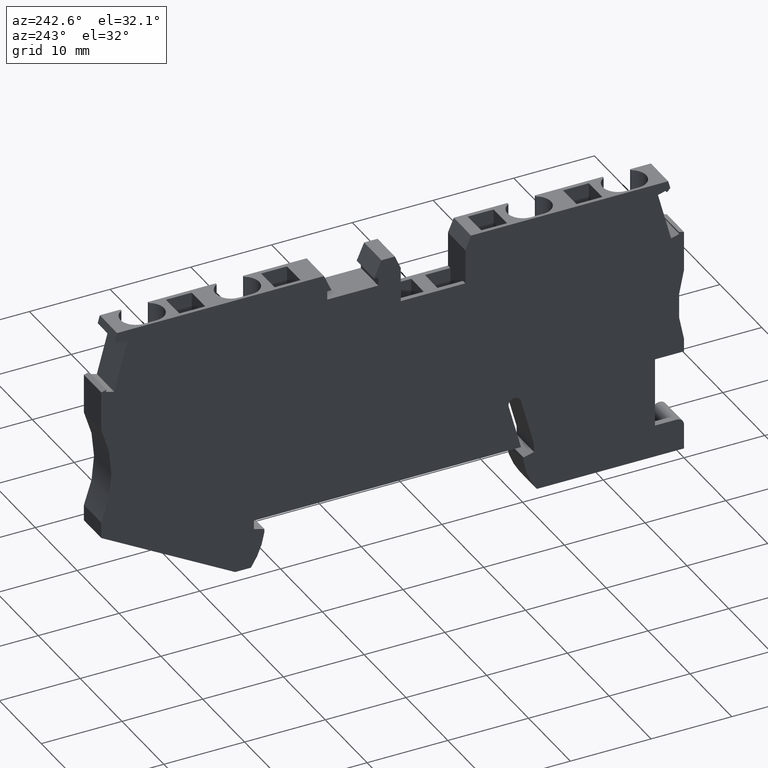
[diagram: clean part render]
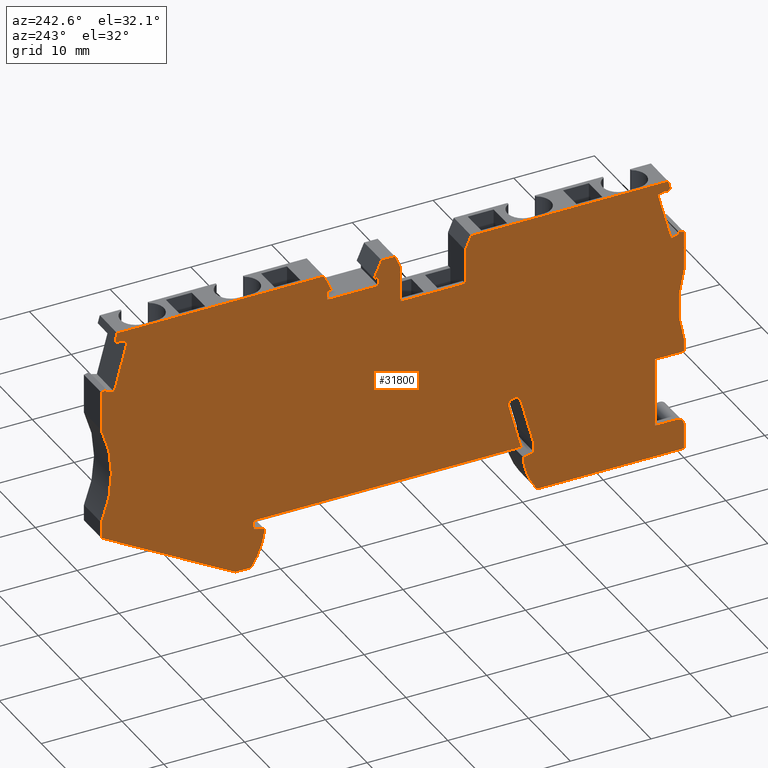
[diagram: same view with one face highlighted and labeled with its STEP entity id]
A machine part, auxiliary view. The second image highlights one B-rep face of the part: STEP entity #31800.
In plain terms, the highlighted planar face has unit normal (-1, -0, 0).
Its self-contained STEP definition (entity closure, byte-faithful):
#7020=CARTESIAN_POINT('',(0.0996055945219609,1.06581410364015E-14,-4.15)
);
#7030=DIRECTION('',(0.121869343404765,-0.992546151641369,
5.50815964095196E-32));
#7040=VECTOR('',#7030,1.);
#7050=LINE('',#7020,#7040);
#7060=CARTESIAN_POINT('',(0.472001856340519,-3.03292416474266,-4.15));
#7070=VERTEX_POINT('',#7060);
#7080=CARTESIAN_POINT('',(0.849796820895286,-6.10981723483097,-4.15));
#7090=VERTEX_POINT('',#7080);
#7100=EDGE_CURVE('',#7070,#7090,#7050,.T.);
#9030=CARTESIAN_POINT('',(-1.63922510601571,28.129341348902,-4.15));
#9040=VERTEX_POINT('',#9030);
#9070=CARTESIAN_POINT('',(-5.59254621883092,1.24344978758018E-14,-4.15))
;
#9080=DIRECTION('',(-0.139173100960481,-0.990268068741512,0.));
#9090=VECTOR('',#9080,1.);
#9100=LINE('',#9070,#9090);
#9110=CARTESIAN_POINT('',(-1.50051398889333,29.1163222318297,-4.15));
#9120=VERTEX_POINT('',#9110);
#9130=EDGE_CURVE('',#9120,#9040,#9100,.T.);
#9410=CARTESIAN_POINT('',(-1.15696939205302,27.7525618912832,-4.15));
#9420=VERTEX_POINT('',#9410);
#9450=CARTESIAN_POINT('',(-1.75415237890775E-14,26.8486383349665,-4.15))
;
#9460=DIRECTION('',(0.788010753607553,-0.615661475324594,0.));
#9470=VECTOR('',#9460,1.);
#9480=LINE('',#9450,#9470);
#9490=EDGE_CURVE('',#9040,#9420,#9480,.T.);
#9710=CARTESIAN_POINT('',(56.0528727208694,0.668268200037353,-4.15));
#9720=VERTEX_POINT('',#9710);
#9750=CARTESIAN_POINT('',(0.,-6.214159164341,-4.15));
#9760=DIRECTION('',(-0.992546151641322,-0.121869343405147,0.));
#9770=VECTOR('',#9760,1.);
#9780=LINE('',#9750,#9770);
#9790=CARTESIAN_POINT('',(54.108775151386,0.429563033615931,-4.15));
#9800=VERTEX_POINT('',#9790);
#9810=EDGE_CURVE('',#9720,#9800,#9780,.T.);
#10040=CARTESIAN_POINT('',(18.9548874062865,-3.88679163719611,-4.15));
#10050=VERTEX_POINT('',#10040);
#10080=CARTESIAN_POINT('',(-1.75415237890775E-14,-6.2141591643413,-4.15)
);
#10090=DIRECTION('',(0.99254615164132,0.121869343405163,0.));
#10100=VECTOR('',#10090,1.);
#10110=LINE('',#10080,#10100);
#10120=EDGE_CURVE('',#7090,#10050,#10110,.T.);
#10500=CARTESIAN_POINT('',(3.93548559318386,-1.70090299200709,-4.15));
#10510=VERTEX_POINT('',#10500);
#10540=CARTESIAN_POINT('',(3.72664096617183,1.24344978758018E-14,-4.15))
;
#10550=DIRECTION('',(0.121869343405147,-0.992546151641322,0.));
#10560=VECTOR('',#10550,1.);
#10570=LINE('',#10540,#10560);
#10580=CARTESIAN_POINT('',(2.88740923989949,6.83499391210909,-4.15));
#10590=VERTEX_POINT('',#10580);
#10600=EDGE_CURVE('',#10590,#10510,#10570,.T.);
#12090=CARTESIAN_POINT('',(1.36529339281751,-2.92324175567805,-4.15));
#12100=DIRECTION('',(1.37494182847794E-31,-3.30939351722564E-31,1.));
#12110=DIRECTION('',(0.992546151641322,0.121869343405147,
1.83748564671773E-44));
#12120=AXIS2_PLACEMENT_3D('',#12090,#12100,#12110);
#12130=CIRCLE('',#12120,0.89999999999984);
#12140=CARTESIAN_POINT('',(1.25561098375288,-2.02995021920092,-4.15));
#12150=VERTEX_POINT('',#12140);
#12160=EDGE_CURVE('',#12150,#7070,#12130,.T.);
#13820=CARTESIAN_POINT('',(20.1018012370322,0.384821958285862,-4.15));
#13830=VERTEX_POINT('',#13820);
#13860=CARTESIAN_POINT('',(10.6053593749794,0.644806497501682,-4.15));
#13870=DIRECTION('',(0.,0.,1.));
#13880=DIRECTION('',(0.992546151641322,0.121869343405147,0.));
#13890=AXIS2_PLACEMENT_3D('',#13860,#13870,#13880);
#13900=CIRCLE('',#13890,9.49999999999899);
#13910=EDGE_CURVE('',#10050,#13830,#13900,.T.);
#14140=CARTESIAN_POINT('',(20.0467569920995,0.833121357882088,-4.15));
#14150=VERTEX_POINT('',#14140);
#14180=CARTESIAN_POINT('',(20.1490514322064,1.24344978758018E-14,-4.15))
;
#14190=DIRECTION('',(-0.121869343405772,0.992546151641245,0.));
#14200=VECTOR('',#14190,1.);
#14210=LINE('',#14180,#14200);
#14220=EDGE_CURVE('',#13830,#14150,#14210,.T.);
#14450=CARTESIAN_POINT('',(18.7139957651747,1.02042873317322,-4.15));
#14460=VERTEX_POINT('',#14450);
#14490=CARTESIAN_POINT('',(-1.75415237890775E-14,3.65050931862992,-4.15)
);
#14500=DIRECTION('',(-0.990268068741556,0.13917310096017,0.));
#14510=VECTOR('',#14500,1.);
#14520=LINE('',#14490,#14510);
#14530=EDGE_CURVE('',#14150,#14460,#14520,.T.);
#14760=CARTESIAN_POINT('',(18.5799394874283,2.11222949998419,-4.15));
#14770=VERTEX_POINT('',#14760);
#14800=CARTESIAN_POINT('',(18.83928865911,1.24344978758018E-14,-4.15));
#14810=DIRECTION('',(-0.121869343405147,0.992546151641322,0.));
#14820=VECTOR('',#14810,1.);
#14830=LINE('',#14800,#14820);
#14840=EDGE_CURVE('',#14460,#14770,#14830,.T.);
#15070=CARTESIAN_POINT('',(19.4454516024282,8.27066819740211,-4.15));
#15080=VERTEX_POINT('',#15070);
#15110=CARTESIAN_POINT('',(18.2830849904171,1.24344978758018E-14,-4.15))
;
#15120=DIRECTION('',(0.139173100960267,0.990268068741542,0.));
#15130=VECTOR('',#15120,1.);
#15140=LINE('',#15110,#15130);
#15150=EDGE_CURVE('',#14770,#15080,#15140,.T.);
#15380=CARTESIAN_POINT('',(20.1680133300546,2.30722044942675,-4.15));
#15390=VERTEX_POINT('',#15380);
#15420=CARTESIAN_POINT('',(19.8437546422496,1.24344978758018E-14,-4.15))
;
#15430=DIRECTION('',(-0.139173100960126,-0.990268068741562,0.));
#15440=VECTOR('',#15430,1.);
#15450=LINE('',#15420,#15440);
#15460=CARTESIAN_POINT('',(20.9898097165992,8.15460557620849,-4.15));
#15470=VERTEX_POINT('',#15460);
#15480=EDGE_CURVE('',#15470,#15390,#15450,.T.);
#15730=CARTESIAN_POINT('',(20.2966220684799,8.25202674688054,-4.15));
#15740=DIRECTION('',(0.,0.,1.));
#15750=DIRECTION('',(0.992546151641322,0.121869343405147,0.));
#15760=AXIS2_PLACEMENT_3D('',#15730,#15740,#15750);
#15770=CIRCLE('',#15760,0.700000000000238);
#15780=CARTESIAN_POINT('',(20.3722274973531,8.947931782877,-4.15));
#15790=VERTEX_POINT('',#15780);
#15800=EDGE_CURVE('',#15470,#15790,#15770,.T.);
#16050=CARTESIAN_POINT('',(20.2376660574214,8.15932971663349,-4.15));
#16060=DIRECTION('',(0.,0.,1.));
#16070=DIRECTION('',(0.992546151641322,0.121869343405147,0.));
#16080=AXIS2_PLACEMENT_3D('',#16050,#16060,#16070);
#16090=CIRCLE('',#16080,0.80000000000001);
#16100=EDGE_CURVE('',#15790,#15080,#16090,.T.);
#16330=CARTESIAN_POINT('',(53.0212909493827,6.34109571613717,-4.15));
#16340=VERTEX_POINT('',#16330);
#16370=CARTESIAN_POINT('',(-1.75415237890775E-14,-0.169100211587936,
-4.15));
#16380=DIRECTION('',(0.992546151641322,0.121869343405147,0.));
#16390=VECTOR('',#16380,1.);
#16400=LINE('',#16370,#16390);
#16410=EDGE_CURVE('',#15390,#16340,#16400,.T.);
#16640=CARTESIAN_POINT('',(53.1553472271283,5.24929494933181,-4.15));
#16650=VERTEX_POINT('',#16640);
#16680=CARTESIAN_POINT('',(53.7998796025319,1.24344978758018E-14,-4.15))
;
#16690=DIRECTION('',(0.121869343405147,-0.992546151641322,0.));
#16700=VECTOR('',#16690,1.);
#16710=LINE('',#16680,#16700);
#16720=EDGE_CURVE('',#16340,#16650,#16710,.T.);
#16950=CARTESIAN_POINT('',(51.9074884597862,4.74512728118737,-4.15));
#16960=VERTEX_POINT('',#16950);
#16990=CARTESIAN_POINT('',(-1.75415237890775E-14,-16.226859373798,-4.15)
);
#17000=DIRECTION('',(-0.927183854566812,-0.374606593415851,0.));
#17010=VECTOR('',#17000,1.);
#17020=LINE('',#16990,#17010);
#17030=EDGE_CURVE('',#16650,#16960,#17020,.T.);
#17260=CARTESIAN_POINT('',(51.9625327047183,4.29682788159137,-4.15));
#17270=VERTEX_POINT('',#17260);
#17300=CARTESIAN_POINT('',(52.4901168294318,1.24344978758018E-14,-4.15))
;
#17310=DIRECTION('',(0.121869343404462,-0.992546151641406,0.));
#17320=VECTOR('',#17310,1.);
#17330=LINE('',#17300,#17320);
#17340=EDGE_CURVE('',#16960,#17270,#17330,.T.);
#17540=CARTESIAN_POINT('',(61.113993705743,6.84648698560988,-4.15));
#17550=DIRECTION('',(0.,0.,-1.));
#17560=DIRECTION('',(-0.992546151641322,-0.121869343405147,0.));
#17570=AXIS2_PLACEMENT_3D('',#17540,#17550,#17560);
#17580=CIRCLE('',#17570,9.499999999999);
#17590=EDGE_CURVE('',#9800,#17270,#17580,.T.);
#17820=CARTESIAN_POINT('',(71.390431316507,11.8205739917481,-4.15));
#17830=VERTEX_POINT('',#17820);
#17860=CARTESIAN_POINT('',(-1.75415237890775E-14,-40.0891165681469,-4.15
));
#17870=DIRECTION('',(0.808793328533598,0.588092978804834,0.));
#17880=VECTOR('',#17870,1.);
#17890=LINE('',#17860,#17880);
#17900=EDGE_CURVE('',#9720,#17830,#17890,.T.);
#18130=CARTESIAN_POINT('',(71.1466926296971,13.8056662950281,-4.15));
#18140=VERTEX_POINT('',#18130);
#18170=CARTESIAN_POINT('',(72.8418153037041,1.24344978758018E-14,-4.15))
;
#18180=DIRECTION('',(-0.121869343405147,0.992546151641322,0.));
#18190=VECTOR('',#18180,1.);
#18200=LINE('',#18170,#18190);
#18210=EDGE_CURVE('',#17830,#18140,#18200,.T.);
#18440=CARTESIAN_POINT('',(69.6842605088353,25.7162201147239,-4.15));
#18450=VERTEX_POINT('',#18440);
#18480=CARTESIAN_POINT('',(84.0607301811666,21.4363696780219,-4.15));
#18490=DIRECTION('',(0.,0.,1.));
#18500=DIRECTION('',(0.992546151641322,0.121869343405147,0.));
#18510=AXIS2_PLACEMENT_3D('',#18480,#18490,#18500);
#18520=CIRCLE('',#18510,15.);
#18530=EDGE_CURVE('',#18450,#18140,#18520,.T.);
#18760=CARTESIAN_POINT('',(69.0871103937917,30.5796175211438,-4.15));
#18770=VERTEX_POINT('',#18760);
#18800=CARTESIAN_POINT('',(72.8418153037041,1.24344978758018E-14,-4.15))
;
#18810=DIRECTION('',(-0.121869343405147,0.992546151641322,0.));
#18820=VECTOR('',#18810,1.);
#18830=LINE('',#18800,#18820);
#18840=EDGE_CURVE('',#18450,#18770,#18830,.T.);
#19070=CARTESIAN_POINT('',(68.4321055573521,30.6716724475863,-4.15));
#19080=VERTEX_POINT('',#19070);
#19110=CARTESIAN_POINT('',(-1.75415237890775E-14,40.2891776825544,-4.15)
);
#19120=DIRECTION('',(-0.990268068742576,0.139173100952908,0.));
#19130=VECTOR('',#19120,1.);
#19140=LINE('',#19110,#19130);
#19150=EDGE_CURVE('',#18770,#19080,#19140,.T.);
#19380=CARTESIAN_POINT('',(68.5341137876654,30.4191932177982,-4.15));
#19390=VERTEX_POINT('',#19380);
#19420=CARTESIAN_POINT('',(80.8242656164388,1.24344978758018E-14,-4.15))
;
#19430=DIRECTION('',(0.374606593416855,-0.927183854566407,0.));
#19440=VECTOR('',#19430,1.);
#19450=LINE('',#19420,#19440);
#19460=EDGE_CURVE('',#19080,#19390,#19450,.T.);
#19690=CARTESIAN_POINT('',(66.2701516819991,37.4375136583179,-4.15));
#19700=VERTEX_POINT('',#19690);
#19730=CARTESIAN_POINT('',(81.3958890300397,1.24344978758018E-14,-4.15))
;
#19740=DIRECTION('',(-0.374606593416301,0.92718385456663,0.));
#19750=VECTOR('',#19740,1.);
#19760=LINE('',#19730,#19750);
#19770=CARTESIAN_POINT('',(66.6435147722446,36.5134075821014,-4.15));
#19780=VERTEX_POINT('',#19770);
#19790=EDGE_CURVE('',#19780,#19700,#19760,.T.);
#20040=CARTESIAN_POINT('',(38.116114253488,1.24344978758018E-14,-4.15));
#20050=DIRECTION('',(0.615661475326723,0.78801075360589,0.));
#20060=VECTOR('',#20050,1.);
#20070=LINE('',#20040,#20060);
#20080=CARTESIAN_POINT('',(66.2667353146246,36.0311518681398,-4.15));
#20090=VERTEX_POINT('',#20080);
#20100=EDGE_CURVE('',#20090,#19780,#20070,.T.);
#20350=CARTESIAN_POINT('',(80.8242656163767,1.24344978758018E-14,-4.15))
;
#20360=DIRECTION('',(0.374606593415343,-0.927183854567017,0.));
#20370=VECTOR('',#20360,1.);
#20380=LINE('',#20350,#20370);
#20390=CARTESIAN_POINT('',(66.1647270843101,36.2836310979318,-4.15));
#20400=VERTEX_POINT('',#20390);
#20410=EDGE_CURVE('',#20400,#20090,#20380,.T.);
#20660=CARTESIAN_POINT('',(-1.75415237890775E-14,9.55134613065412,-4.15)
);
#20670=DIRECTION('',(0.927183854566833,0.3746065934158,0.));
#20680=VECTOR('',#20670,1.);
#20690=LINE('',#20660,#20680);
#20700=CARTESIAN_POINT('',(65.1726403599228,35.8828020429766,-4.15));
#20710=VERTEX_POINT('',#20700);
#20720=EDGE_CURVE('',#20710,#20400,#20690,.T.);
#20970=CARTESIAN_POINT('',(79.6702334417446,1.24344978758018E-14,-4.15))
;
#20980=DIRECTION('',(-0.374606593416089,0.927183854566716,0.));
#20990=VECTOR('',#20980,1.);
#21000=LINE('',#20970,#20990);
#21010=CARTESIAN_POINT('',(67.5420270632793,30.0183641628427,-4.15));
#21020=VERTEX_POINT('',#21010);
#21030=EDGE_CURVE('',#21020,#20710,#21000,.T.);
#21280=CARTESIAN_POINT('',(-1.75415237890775E-14,2.72961388316884,-4.15)
);
#21290=DIRECTION('',(-0.927183854566591,-0.374606593416397,0.));
#21300=VECTOR('',#21290,1.);
#21310=LINE('',#21280,#21300);
#21320=EDGE_CURVE('',#19390,#21020,#21310,.T.);
#23050=CARTESIAN_POINT('',(40.8310435482316,34.3139839363548,-4.15));
#23060=VERTEX_POINT('',#23050);
#23090=CARTESIAN_POINT('',(-1.75415237890775E-14,29.3005621830826,-4.15)
);
#23100=DIRECTION('',(-0.992546151641336,-0.121869343405031,0.));
#23110=VECTOR('',#23100,1.);
#23120=LINE('',#23090,#23110);
#23130=EDGE_CURVE('',#19700,#23060,#23120,.T.);
#26220=CARTESIAN_POINT('',(40.169420877646,32.1119387046781,-4.15));
#26230=VERTEX_POINT('',#26220);
#26260=CARTESIAN_POINT('',(30.5211237682856,1.24344978758018E-14,-4.15))
;
#26270=DIRECTION('',(-0.287750497361314,-0.957705409438788,0.));
#26280=VECTOR('',#26270,1.);
#26290=LINE('',#26260,#26280);
#26300=EDGE_CURVE('',#23060,#26230,#26290,.T.);
#26530=CARTESIAN_POINT('',(40.6933844696107,32.1762733442466,-4.15));
#26540=VERTEX_POINT('',#26530);
#26570=CARTESIAN_POINT('',(-1.75415237890775E-14,27.1797540004923,-4.15)
);
#26580=DIRECTION('',(0.992546151641322,0.121869343405147,0.));
#26590=VECTOR('',#26580,1.);
#26600=LINE('',#26570,#26590);
#26610=EDGE_CURVE('',#26230,#26540,#26600,.T.);
#26840=CARTESIAN_POINT('',(33.7648010461225,33.4463584535037,-4.15));
#26850=VERTEX_POINT('',#26840);
#26880=CARTESIAN_POINT('',(53.6422195780393,1.24344978758018E-14,-4.15))
;
#26890=DIRECTION('',(-0.51089298590022,0.859644320028904,0.));
#26900=VECTOR('',#26890,1.);
#26910=LINE('',#26880,#26900);
#26920=CARTESIAN_POINT('',(34.9394936524423,31.4697843867773,-4.15));
#26930=VERTEX_POINT('',#26920);
#26940=EDGE_CURVE('',#26930,#26850,#26910,.T.);
#27190=CARTESIAN_POINT('',(-1.75415237890775E-14,27.1797540004923,-4.15)
);
#27200=DIRECTION('',(0.992546151641322,0.121869343405147,0.));
#27210=VECTOR('',#27200,1.);
#27220=LINE('',#27190,#27210);
#27230=CARTESIAN_POINT('',(34.4155300604791,31.405449747209,-4.15));
#27240=VERTEX_POINT('',#27230);
#27250=EDGE_CURVE('',#27240,#26930,#27220,.T.);
#27500=CARTESIAN_POINT('',(38.2716344176484,1.24344978758018E-14,-4.15))
;
#27510=DIRECTION('',(-0.121869343405147,0.992546151641322,0.));
#27520=VECTOR('',#27510,1.);
#27530=LINE('',#27500,#27520);
#27540=CARTESIAN_POINT('',(34.5459302579226,30.3434253649531,-4.15));
#27550=VERTEX_POINT('',#27540);
#27560=EDGE_CURVE('',#27550,#27240,#27530,.T.);
#27810=CARTESIAN_POINT('',(-1.75415237890775E-14,26.1017184872538,-4.15)
);
#27820=DIRECTION('',(-0.992546151641329,-0.12186934340509,0.));
#27830=VECTOR('',#27820,1.);
#27840=LINE('',#27810,#27830);
#27850=CARTESIAN_POINT('',(40.8237846670542,31.1142489619904,-4.15));
#27860=VERTEX_POINT('',#27850);
#27870=EDGE_CURVE('',#27860,#27550,#27840,.T.);
#28120=CARTESIAN_POINT('',(44.6441340636758,1.24344978758018E-14,-4.15))
;
#28130=DIRECTION('',(0.121869343405147,-0.992546151641322,0.));
#28140=VECTOR('',#28130,1.);
#28150=LINE('',#28120,#28140);
#28160=EDGE_CURVE('',#26540,#27860,#28150,.T.);
#28390=CARTESIAN_POINT('',(32.1054168262382,33.2426116906957,-4.15));
#28400=VERTEX_POINT('',#28390);
#28430=CARTESIAN_POINT('',(-1.75415237890775E-14,29.3005621830774,-4.15)
);
#28440=DIRECTION('',(-0.992546151641307,-0.121869343405268,0.));
#28450=VECTOR('',#28440,1.);
#28460=LINE('',#28430,#28450);
#28470=EDGE_CURVE('',#26850,#28400,#28460,.T.);
#30010=CARTESIAN_POINT('',(10.7974376558475,26.9297279665335,-4.15));
#30020=DIRECTION('',(0.,0.,-1.));
#30030=DIRECTION('',(0.992546151641322,0.121869343405147,0.));
#30040=AXIS2_PLACEMENT_3D('',#30010,#30020,#30030);
#30050=PLANE('',#30040);
#30060=CARTESIAN_POINT('',(-2.1316282072803E-14,-2.18411986250588,-4.15)
);
#30070=DIRECTION('',(-0.992546151641322,-0.121869343405147,
-1.83748564671773E-44));
#30080=VECTOR('',#30070,1.);
#30090=LINE('',#30060,#30080);
#30100=EDGE_CURVE('',#10510,#12150,#30090,.T.);
#30110=ORIENTED_EDGE('',*,*,#30100,.F.);
#30120=ORIENTED_EDGE('',*,*,#12160,.F.);
#30130=ORIENTED_EDGE('',*,*,#7100,.F.);
#30140=ORIENTED_EDGE('',*,*,#10120,.F.);
#30150=ORIENTED_EDGE('',*,*,#13910,.F.);
#30160=ORIENTED_EDGE('',*,*,#14220,.F.);
#30170=ORIENTED_EDGE('',*,*,#14530,.F.);
#30180=ORIENTED_EDGE('',*,*,#14840,.F.);
#30190=ORIENTED_EDGE('',*,*,#15150,.F.);
#30200=ORIENTED_EDGE('',*,*,#16100,.T.);
#30210=ORIENTED_EDGE('',*,*,#15800,.T.);
#30220=ORIENTED_EDGE('',*,*,#15480,.F.);
#30230=ORIENTED_EDGE('',*,*,#16410,.F.);
#30240=ORIENTED_EDGE('',*,*,#16720,.F.);
#30250=ORIENTED_EDGE('',*,*,#17030,.F.);
#30260=ORIENTED_EDGE('',*,*,#17340,.F.);
#30270=ORIENTED_EDGE('',*,*,#17590,.T.);
#30280=ORIENTED_EDGE('',*,*,#9810,.T.);
#30290=ORIENTED_EDGE('',*,*,#17900,.F.);
#30300=ORIENTED_EDGE('',*,*,#18210,.F.);
#30310=ORIENTED_EDGE('',*,*,#18530,.T.);
#30320=ORIENTED_EDGE('',*,*,#18840,.F.);
#30330=ORIENTED_EDGE('',*,*,#19150,.F.);
#30340=ORIENTED_EDGE('',*,*,#19460,.F.);
#30350=ORIENTED_EDGE('',*,*,#21320,.F.);
#30360=ORIENTED_EDGE('',*,*,#21030,.F.);
#30370=ORIENTED_EDGE('',*,*,#20720,.F.);
#30380=ORIENTED_EDGE('',*,*,#20410,.F.);
#30390=ORIENTED_EDGE('',*,*,#20100,.F.);
#30400=ORIENTED_EDGE('',*,*,#19790,.F.);
#30410=ORIENTED_EDGE('',*,*,#23130,.F.);
#30420=ORIENTED_EDGE('',*,*,#26300,.F.);
#30430=ORIENTED_EDGE('',*,*,#26610,.F.);
#30440=ORIENTED_EDGE('',*,*,#28160,.F.);
#30450=ORIENTED_EDGE('',*,*,#27870,.F.);
#30460=ORIENTED_EDGE('',*,*,#27560,.F.);
#30470=ORIENTED_EDGE('',*,*,#27250,.F.);
#30480=ORIENTED_EDGE('',*,*,#26940,.F.);
#30490=ORIENTED_EDGE('',*,*,#28470,.F.);
#30500=CARTESIAN_POINT('',(22.6289845756448,1.24344978758018E-14,-4.15))
;
#30510=DIRECTION('',(-0.274147194873168,-0.961687743263464,0.));
#30520=VECTOR('',#30510,1.);
#30530=LINE('',#30500,#30520);
#30540=CARTESIAN_POINT('',(31.5994505786988,31.4677201438798,-4.15));
#30550=VERTEX_POINT('',#30540);
#30560=EDGE_CURVE('',#28400,#30550,#30530,.T.);
#30570=ORIENTED_EDGE('',*,*,#30560,.F.);
#30580=CARTESIAN_POINT('',(35.4632007791807,1.24344978758018E-14,-4.15))
;
#30590=DIRECTION('',(0.121869343405153,-0.992546151641321,0.));
#30600=VECTOR('',#30590,1.);
#30610=LINE('',#30580,#30600);
#30620=CARTESIAN_POINT('',(32.1234887553407,27.199771691824,-4.15));
#30630=VERTEX_POINT('',#30620);
#30640=EDGE_CURVE('',#30550,#30630,#30610,.T.);
#30650=ORIENTED_EDGE('',*,*,#30640,.F.);
#30660=CARTESIAN_POINT('',(-1.75415237890775E-14,23.2555032303301,-4.15)
);
#30670=DIRECTION('',(-0.992546151641322,-0.121869343405147,0.));
#30680=VECTOR('',#30670,1.);
#30690=LINE('',#30660,#30680);
#30700=CARTESIAN_POINT('',(24.1831195422103,26.2248169445829,-4.15));
#30710=VERTEX_POINT('',#30700);
#30720=EDGE_CURVE('',#30630,#30710,#30690,.T.);
#30730=ORIENTED_EDGE('',*,*,#30720,.F.);
#30740=CARTESIAN_POINT('',(27.4031221755101,1.24344978758018E-14,-4.15))
;
#30750=DIRECTION('',(-0.12186934340515,0.992546151641322,0.));
#30760=VECTOR('',#30750,1.);
#30770=LINE('',#30740,#30760);
#30780=CARTESIAN_POINT('',(23.6590813655684,30.4927653966389,-4.15));
#30790=VERTEX_POINT('',#30780);
#30800=EDGE_CURVE('',#30710,#30790,#30770,.T.);
#30810=ORIENTED_EDGE('',*,*,#30800,.F.);
#30820=CARTESIAN_POINT('',(41.2011308712362,1.24344978758018E-14,-4.15))
;
#30830=DIRECTION('',(-0.498657173381252,0.866799298243498,0.));
#30840=VECTOR('',#30830,1.);
#30850=LINE('',#30820,#30840);
#30860=CARTESIAN_POINT('',(22.7387593504515,32.0925307654035,-4.15));
#30870=VERTEX_POINT('',#30860);
#30880=EDGE_CURVE('',#30790,#30870,#30850,.T.);
#30890=ORIENTED_EDGE('',*,*,#30880,.F.);
#30900=CARTESIAN_POINT('',(-1.75415237890775E-14,29.3005621830844,-4.15)
);
#30910=DIRECTION('',(-0.992546151641337,-0.121869343405022,0.));
#30920=VECTOR('',#30910,1.);
#30930=LINE('',#30900,#30920);
#30940=EDGE_CURVE('',#30870,#9120,#30930,.T.);
#30950=ORIENTED_EDGE('',*,*,#30940,.F.);
#30960=ORIENTED_EDGE('',*,*,#9130,.F.);
#30970=ORIENTED_EDGE('',*,*,#9490,.F.);
#30980=CARTESIAN_POINT('',(-5.05733760536636,1.24344978758018E-14,-4.15)
);
#30990=DIRECTION('',(0.139173100959457,0.990268068741656,0.));
#31000=VECTOR('',#30990,1.);
#31010=LINE('',#30980,#31000);
#31020=CARTESIAN_POINT('',(-1.11907149600474,28.0222194333684,-4.15));
#31030=VERTEX_POINT('',#31020);
#31040=EDGE_CURVE('',#9420,#31030,#31010,.T.);
#31050=ORIENTED_EDGE('',*,*,#31040,.F.);
#31060=CARTESIAN_POINT('',(-1.75415237890775E-14,27.8649441912284,-4.15)
);
#31070=DIRECTION('',(0.990268068741587,-0.139173100959946,0.));
#31080=VECTOR('',#31070,1.);
#31090=LINE('',#31060,#31080);
#31100=CARTESIAN_POINT('',(-0.0594846624503393,27.8733042153411,-4.15));
#31110=VERTEX_POINT('',#31100);
#31120=EDGE_CURVE('',#31030,#31110,#31090,.T.);
#31130=ORIENTED_EDGE('',*,*,#31120,.F.);
#31140=CARTESIAN_POINT('',(-3.97682210279349,1.24344978758018E-14,-4.15)
);
#31150=DIRECTION('',(-0.139173100960254,-0.990268068741544,0.));
#31160=VECTOR('',#31150,1.);
#31170=LINE('',#31140,#31160);
#31180=CARTESIAN_POINT('',(-0.939754526023854,21.6098586805515,-4.15));
#31190=VERTEX_POINT('',#31180);
#31200=EDGE_CURVE('',#31110,#31190,#31170,.T.);
#31210=ORIENTED_EDGE('',*,*,#31200,.F.);
#31220=CARTESIAN_POINT('',(-1.75415237890775E-14,21.4777847950483,-4.15)
);
#31230=DIRECTION('',(-0.990268068741498,0.139173100960584,0.));
#31240=VECTOR('',#31230,1.);
#31250=LINE('',#31220,#31240);
#31260=CARTESIAN_POINT('',(-1.99934135957832,21.7587738985795,-4.15));
#31270=VERTEX_POINT('',#31260);
#31280=EDGE_CURVE('',#31190,#31270,#31250,.T.);
#31290=ORIENTED_EDGE('',*,*,#31280,.F.);
#31300=CARTESIAN_POINT('',(-5.05733760540784,1.24344978758018E-14,-4.15)
);
#31310=DIRECTION('',(0.139173100961072,0.990268068741429,0.));
#31320=VECTOR('',#31310,1.);
#31330=LINE('',#31300,#31320);
#31340=CARTESIAN_POINT('',(-1.96144346353026,22.0284314406599,-4.15));
#31350=VERTEX_POINT('',#31340);
#31360=EDGE_CURVE('',#31270,#31350,#31330,.T.);
#31370=ORIENTED_EDGE('',*,*,#31360,.F.);
#31380=CARTESIAN_POINT('',(-1.75415237890775E-14,22.8209060404026,-4.15)
);
#31390=DIRECTION('',(-0.927183854569495,-0.374606593409211,0.));
#31400=VECTOR('',#31390,1.);
#31410=LINE('',#31380,#31400);
#31420=CARTESIAN_POINT('',(-2.57472175471222,21.7806509272922,-4.15));
#31430=VERTEX_POINT('',#31420);
#31440=EDGE_CURVE('',#31350,#31430,#31410,.T.);
#31450=ORIENTED_EDGE('',*,*,#31440,.F.);
#31460=CARTESIAN_POINT('',(0.0996059055747907,1.24344978758018E-14,-4.15
));
#31470=DIRECTION('',(0.121869343405147,-0.992546151641322,0.));
#31480=VECTOR('',#31470,1.);
#31490=LINE('',#31460,#31480);
#31500=CARTESIAN_POINT('',(-1.97757163966869,16.9172535208728,-4.15));
#31510=VERTEX_POINT('',#31500);
#31520=EDGE_CURVE('',#31430,#31510,#31490,.T.);
#31530=ORIENTED_EDGE('',*,*,#31520,.F.);
#31540=CARTESIAN_POINT('',(-15.631589843338,10.7069566766095,-4.15));
#31550=DIRECTION('',(0.,0.,1.));
#31560=DIRECTION('',(0.992546151641322,0.121869343405147,0.));
#31570=AXIS2_PLACEMENT_3D('',#31540,#31550,#31560);
#31580=CIRCLE('',#31570,15.);
#31590=CARTESIAN_POINT('',(-0.880747549022021,7.98433815610069,-4.15));
#31600=VERTEX_POINT('',#31590);
#31610=EDGE_CURVE('',#31600,#31510,#31580,.T.);
#31620=ORIENTED_EDGE('',*,*,#31610,.T.);
#31630=CARTESIAN_POINT('',(0.0996059055751248,1.24344978758018E-14,-4.15
));
#31640=DIRECTION('',(0.12186934340515,-0.992546151641322,0.));
#31650=VECTOR('',#31640,1.);
#31660=LINE('',#31630,#31650);
#31670=CARTESIAN_POINT('',(-0.685756599573967,6.39626431347609,-4.15));
#31680=VERTEX_POINT('',#31670);
#31690=EDGE_CURVE('',#31600,#31680,#31660,.T.);
#31700=ORIENTED_EDGE('',*,*,#31690,.F.);
#31710=CARTESIAN_POINT('',(-1.75415237890775E-14,6.48046463644104,-4.15)
);
#31720=DIRECTION('',(0.992546151641322,0.121869343405147,0.));
#31730=VECTOR('',#31720,1.);
#31740=LINE('',#31710,#31730);
#31750=EDGE_CURVE('',#31680,#10590,#31740,.T.);
#31760=ORIENTED_EDGE('',*,*,#31750,.F.);
#31770=ORIENTED_EDGE('',*,*,#10600,.F.);
#31780=EDGE_LOOP('',(#31770,#31760,#31700,#31620,#31530,#31450,#31370,
#31290,#31210,#31130,#31050,#30970,#30960,#30950,#30890,#30810,#30730,
#30650,#30570,#30490,#30480,#30470,#30460,#30450,#30440,#30430,#30420,
#30410,#30400,#30390,#30380,#30370,#30360,#30350,#30340,#30330,#30320,
#30310,#30300,#30290,#30280,#30270,#30260,#30250,#30240,#30230,#30220,
#30210,#30200,#30190,#30180,#30170,#30160,#30150,#30140,#30130,#30120,
#30110));
#31790=FACE_OUTER_BOUND('',#31780,.T.);
#31800=ADVANCED_FACE('',(#31790),#30050,.T.);